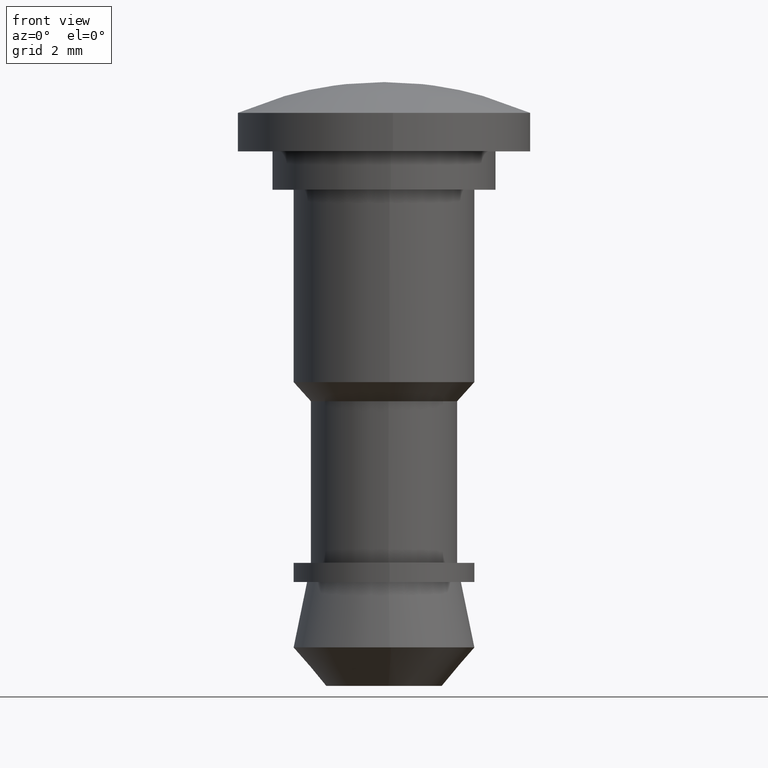
[diagram: clean part render]
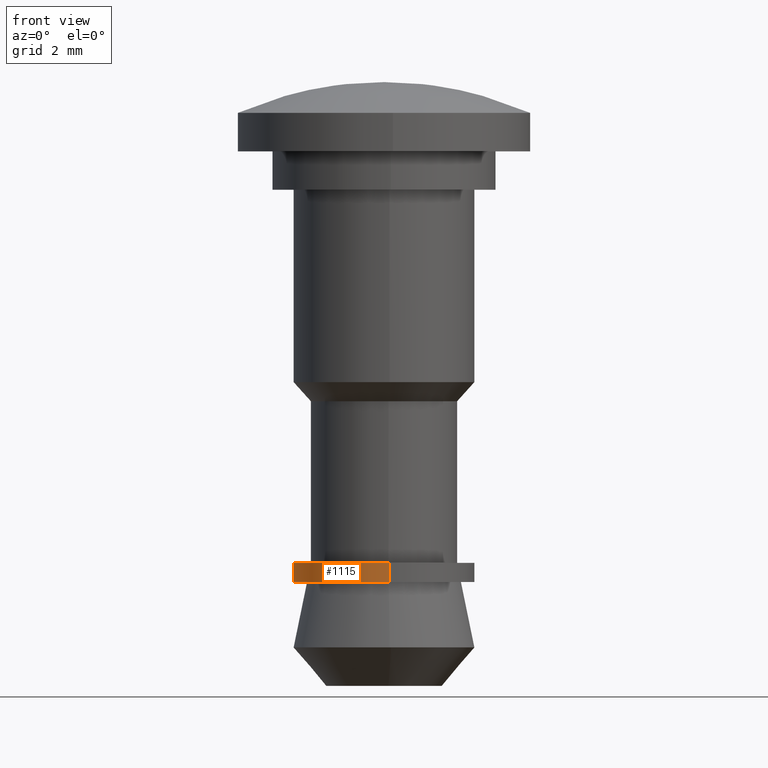
[diagram: same view with one face highlighted and labeled with its STEP entity id]
A machine part, front view. The second image highlights one B-rep face of the part: STEP entity #1115.
In plain terms, the highlighted face is a freeform B-spline surface patch.
Its self-contained STEP definition (entity closure, byte-faithful):
#952=CARTESIAN_POINT('',(-0.277378369368707,2.333572634438869,-9.699999999999918));
#953=VERTEX_POINT('',#952);
#971=CARTESIAN_POINT('',(0.143460191347642,-2.345617013385479,-9.699999999999850));
#972=VERTEX_POINT('',#971);
#986=CARTESIAN_POINT('',(0.143460238088021,-2.345617010526869,-10.199999999999999));
#987=VERTEX_POINT('',#986);
#988=CARTESIAN_POINT('',(0.143460191347642,-2.345617013385479,-9.699999999999850));
#989=CARTESIAN_POINT('',(0.143460238088021,-2.345617010526869,-10.199999999999999));
#990=QUASI_UNIFORM_CURVE('',1,(#988,#989),.UNSPECIFIED.,.F.,.U.);
#991=EDGE_CURVE('',#972,#987,#990,.T.);
#1008=CARTESIAN_POINT('',(-0.277378394483617,2.333572631453626,-10.199999999999999));
#1009=VERTEX_POINT('',#1008);
#1025=CARTESIAN_POINT('',(-0.277378369368707,2.333572634438869,-9.699999999999918));
#1026=CARTESIAN_POINT('',(-0.277378394483617,2.333572631453626,-10.199999999999999));
#1027=QUASI_UNIFORM_CURVE('',1,(#1025,#1026),.UNSPECIFIED.,.F.,.U.);
#1028=EDGE_CURVE('',#953,#1009,#1027,.T.);
#1033=CARTESIAN_POINT('',(0.143464067906914,-2.345616776291387,-9.687500000000000));
#1034=CARTESIAN_POINT('',(-2.202152708384472,-2.489080844198301,-9.687500000000000));
#1035=CARTESIAN_POINT('',(-2.345616776291387,-0.143464067906914,-9.687500000000000));
#1036=CARTESIAN_POINT('',(-2.481097562321439,2.071627203472828,-9.687500000000002));
#1037=CARTESIAN_POINT('',(-0.277380451443382,2.333572386954616,-9.687500000000000));
#1038=CARTESIAN_POINT('',(0.143464067906914,-2.345616776291387,-10.212812500000000));
#1039=CARTESIAN_POINT('',(-2.202152708384472,-2.489080844198301,-10.212812500000004));
#1040=CARTESIAN_POINT('',(-2.345616776291387,-0.143464067906914,-10.212812500000000));
#1041=CARTESIAN_POINT('',(-2.481097562321439,2.071627203472828,-10.212812500000002));
#1042=CARTESIAN_POINT('',(-0.277380451443382,2.333572386954616,-10.212812500000002));
#1050=(BOUNDED_SURFACE()B_SPLINE_SURFACE(2,1,((#1033,#1038),(#1034,#1039),(#1035,#1040),(#1036,#1041),(#1037,#1042)),.UNSPECIFIED.,.F.,.F.,.U.)B_SPLINE_SURFACE_WITH_KNOTS((3,2,3),(2,2),(0.0,3.893607486307092,7.631470673161900),(0.0,1.0),.UNSPECIFIED.)GEOMETRIC_REPRESENTATION_ITEM()RATIONAL_B_SPLINE_SURFACE(((1.0,1.0),(0.707106781186548,0.707106781186548),(1.0,1.0),(0.718822509939086,0.718822509939086),(0.977505800795127,0.977505800795127)))REPRESENTATION_ITEM('')SURFACE());
#1051=CARTESIAN_POINT('',(-2.350000000000000,0.0,-9.700000000000001));
#1052=VERTEX_POINT('',#1051);
#1053=CARTESIAN_POINT('',(-2.350000000000000,0.0,-9.700000000000001));
#1054=CARTESIAN_POINT('',(-2.350000000000001,2.087212011359800,-9.700000000000001));
#1055=CARTESIAN_POINT('',(-0.277378369368707,2.333572634438868,-9.699999999999918));
#1063=(BOUNDED_CURVE()B_SPLINE_CURVE(2,(#1053,#1054,#1055),.UNSPECIFIED.,.F.,.U.)B_SPLINE_CURVE_WITH_KNOTS((3,3),(0.0,0.229562624304798),.UNSPECIFIED.)CURVE()GEOMETRIC_REPRESENTATION_ITEM()RATIONAL_B_SPLINE_CURVE((1.0,0.731050656192418,0.956027049741010))REPRESENTATION_ITEM(''));
#1064=EDGE_CURVE('',#1052,#953,#1063,.T.);
#1065=ORIENTED_EDGE('',*,*,#1064,.T.);
#1066=ORIENTED_EDGE('',*,*,#1028,.T.);
#1067=CARTESIAN_POINT('',(-2.350000000000000,0.0,-10.199999999999999));
#1068=VERTEX_POINT('',#1067);
#1069=CARTESIAN_POINT('',(-2.350000000000000,0.0,-10.199999999999999));
#1070=CARTESIAN_POINT('',(-2.350000000000001,2.087211988738199,-10.200000000000001));
#1071=CARTESIAN_POINT('',(-0.277378394483617,2.333572631453627,-10.200000000000003));
#1079=(BOUNDED_CURVE()B_SPLINE_CURVE(2,(#1069,#1070,#1071),.UNSPECIFIED.,.F.,.U.)B_SPLINE_CURVE_WITH_KNOTS((3,3),(0.0,0.229562622485912),.UNSPECIFIED.)CURVE()GEOMETRIC_REPRESENTATION_ITEM()RATIONAL_B_SPLINE_CURVE((1.0,0.731050658323375,0.956027046175914))REPRESENTATION_ITEM(''));
#1080=EDGE_CURVE('',#1068,#1009,#1079,.T.);
#1081=ORIENTED_EDGE('',*,*,#1080,.F.);
#1082=CARTESIAN_POINT('',(0.143460238088021,-2.345617010526869,-10.200000000000001));
#1083=CARTESIAN_POINT('',(0.071797073473258,-2.350000000000000,-10.200000000000001));
#1084=CARTESIAN_POINT('',(0.0,-2.350000000000000,-10.199999999999999));
#1085=CARTESIAN_POINT('',(-2.350000000000001,-2.350000000000001,-10.200000000000001));
#1086=CARTESIAN_POINT('',(-2.350000000000000,0.0,-10.199999999999999));
#1094=(BOUNDED_CURVE()B_SPLINE_CURVE(2,(#1082,#1083,#1084,#1085,#1086),.UNSPECIFIED.,.F.,.U.)B_SPLINE_CURVE_WITH_KNOTS((3,2,3),(0.739333243968762,0.750000000000000,1.0),.UNSPECIFIED.)CURVE()GEOMETRIC_REPRESENTATION_ITEM()RATIONAL_B_SPLINE_CURVE((0.976072645468094,0.987503117966852,1.0,0.707106781186547,1.0))REPRESENTATION_ITEM(''));
#1095=EDGE_CURVE('',#987,#1068,#1094,.T.);
#1096=ORIENTED_EDGE('',*,*,#1095,.F.);
#1097=ORIENTED_EDGE('',*,*,#991,.F.);
#1098=CARTESIAN_POINT('',(0.143460191347642,-2.345617013385478,-9.699999999999850));
#1099=CARTESIAN_POINT('',(0.071797050037546,-2.350000000000001,-9.700000000000001));
#1100=CARTESIAN_POINT('',(0.0,-2.350000000000000,-9.700000000000001));
#1101=CARTESIAN_POINT('',(-2.350000000000001,-2.350000000000001,-9.700000000000001));
#1102=CARTESIAN_POINT('',(-2.350000000000000,0.0,-9.700000000000001));
#1110=(BOUNDED_CURVE()B_SPLINE_CURVE(2,(#1098,#1099,#1100,#1101,#1102),.UNSPECIFIED.,.F.,.U.)B_SPLINE_CURVE_WITH_KNOTS((3,2,3),(0.739333247407050,0.750000000000000,1.0),.UNSPECIFIED.)CURVE()GEOMETRIC_REPRESENTATION_ITEM()RATIONAL_B_SPLINE_CURVE((0.976072652837018,0.987503121995057,1.0,0.707106781186547,1.0))REPRESENTATION_ITEM(''));
#1111=EDGE_CURVE('',#972,#1052,#1110,.T.);
#1112=ORIENTED_EDGE('',*,*,#1111,.T.);
#1113=EDGE_LOOP('',(#1065,#1066,#1081,#1096,#1097,#1112));
#1114=FACE_OUTER_BOUND('',#1113,.T.);
#1115=ADVANCED_FACE('',(#1114),#1050,.T.);